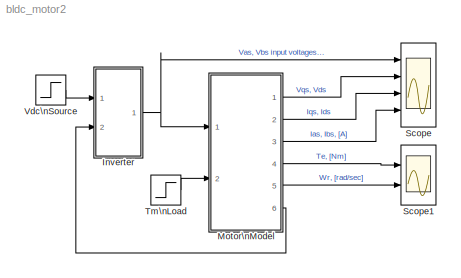
MODEL bldc_motor2
KIND model
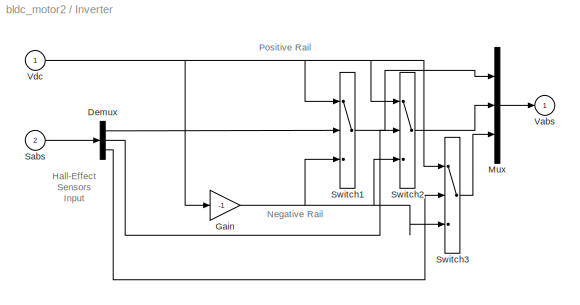
BLOCK [SubSystem] Inverter
  Ports = [2, 1]
  RequestExecContextInheritance = off
  SID = 1
BLOCK [Demux] Inverter/Demux
  Outputs = 3
  Ports = [1, 3]
  SID = 4
BLOCK [Gain] Inverter/Gain
  Gain = -1
  SID = 5
BLOCK [Mux] Inverter/Mux
  DisplayOption = bar
  Inputs = 3
  Ports = [3, 1]
  SID = 6
BLOCK [Inport] Inverter/Sabs
  IconDisplay = Port number
  Port = 2
  SID = 3
BLOCK [Switch] Inverter/Switch1
  InputSameDT = off
  SID = 7
BLOCK [Switch] Inverter/Switch2
  InputSameDT = off
  SID = 8
BLOCK [Switch] Inverter/Switch3
  InputSameDT = off
  SID = 69
BLOCK [Outport] Inverter/Vabs
  IconDisplay = Port number
  InitialOutput = 0
  SID = 9
BLOCK [Inport] Inverter/Vdc
  IconDisplay = Port number
  SID = 2
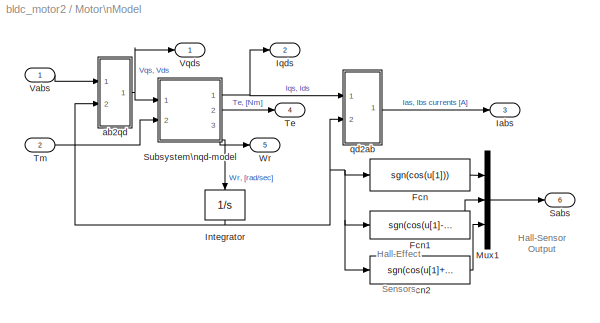
BLOCK [SubSystem] Motor\nModel
  Ports = [2, 6]
  RequestExecContextInheritance = off
  SID = 13
BLOCK [Fcn] Motor\nModel/Fcn
  Expr = sgn(cos(u[1]))
  SID = 16
BLOCK [Fcn] Motor\nModel/Fcn1
  Expr = sgn(cos(u[1]-2*pi/3))
  SID = 17
BLOCK [Fcn] Motor\nModel/Fcn2
  Expr = sgn(cos(u[1]+2*pi/3))
  SID = 70
BLOCK [Outport] Motor\nModel/Iabs
  IconDisplay = Port number
  Port = 3
  SID = 58
BLOCK [Integrator] Motor\nModel/Integrator
  Ports = [1, 1]
  SID = 18
BLOCK [Outport] Motor\nModel/Iqds
  IconDisplay = Port number
  Port = 2
  SID = 57
BLOCK [Mux] Motor\nModel/Mux1
  DisplayOption = bar
  Inputs = 3
  Ports = [3, 1]
  SID = 19
BLOCK [Outport] Motor\nModel/Sabs
  IconDisplay = Port number
  Port = 6
  SID = 61
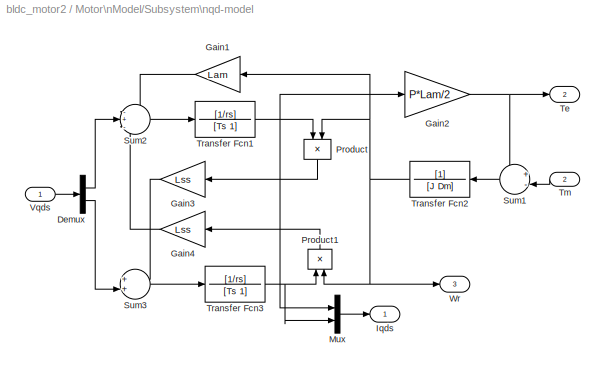
BLOCK [SubSystem] Motor\nModel/Subsystem\nqd-model
  Ports = [2, 3]
  RequestExecContextInheritance = off
  SID = 20
BLOCK [Demux] Motor\nModel/Subsystem\nqd-model/Demux
  Outputs = 2
  Ports = [1, 2]
  SID = 23
BLOCK [Gain] Motor\nModel/Subsystem\nqd-model/Gain1
  Gain = Lam
  SID = 24
BLOCK [Gain] Motor\nModel/Subsystem\nqd-model/Gain2
  Gain = P*Lam/2
  SID = 25
BLOCK [Gain] Motor\nModel/Subsystem\nqd-model/Gain3
  Gain = Lss
  SID = 26
BLOCK [Gain] Motor\nModel/Subsystem\nqd-model/Gain4
  Gain = Lss
  SID = 27
BLOCK [Outport] Motor\nModel/Subsystem\nqd-model/Iqds
  IconDisplay = Port number
  SID = 37
BLOCK [Mux] Motor\nModel/Subsystem\nqd-model/Mux
  DisplayOption = bar
  Inputs = 2
  Ports = [2, 1]
  SID = 28
BLOCK [Product] Motor\nModel/Subsystem\nqd-model/Product
  InputSameDT = off
  Ports = [2, 1]
  RndMeth = Floor
  SID = 29
BLOCK [Product] Motor\nModel/Subsystem\nqd-model/Product1
  InputSameDT = off
  Ports = [2, 1]
  RndMeth = Floor
  SID = 30
BLOCK [Sum] Motor\nModel/Subsystem\nqd-model/Sum1
  IconShape = round
  InputSameDT = off
  Inputs = +-|
  OutDataTypeStr = Inherit: Inherit via internal rule
  Ports = [2, 1]
  SID = 31
BLOCK [Sum] Motor\nModel/Subsystem\nqd-model/Sum2
  IconShape = round
  InputSameDT = off
  Inputs = -+-
  OutDataTypeStr = Inherit: Inherit via internal rule
  Ports = [3, 1]
  SID = 32
BLOCK [Sum] Motor\nModel/Subsystem\nqd-model/Sum3
  IconShape = round
  InputSameDT = off
  Inputs = ++|
  OutDataTypeStr = Inherit: Inherit via internal rule
  Ports = [2, 1]
  SID = 33
BLOCK [Outport] Motor\nModel/Subsystem\nqd-model/Te
  IconDisplay = Port number
  Port = 2
  SID = 38
BLOCK [Inport] Motor\nModel/Subsystem\nqd-model/Tm
  IconDisplay = Port number
  Port = 2
  SID = 22
BLOCK [TransferFcn] Motor\nModel/Subsystem\nqd-model/Transfer Fcn1
  Denominator = [Ts 1]
  Numerator = [1/rs]
  SID = 34
BLOCK [TransferFcn] Motor\nModel/Subsystem\nqd-model/Transfer Fcn2
  Denominator = [J Dm]
  SID = 35
BLOCK [TransferFcn] Motor\nModel/Subsystem\nqd-model/Transfer Fcn3
  Denominator = [Ts 1]
  Numerator = [1/rs]
  SID = 36
BLOCK [Inport] Motor\nModel/Subsystem\nqd-model/Vqds
  IconDisplay = Port number
  SID = 21
BLOCK [Outport] Motor\nModel/Subsystem\nqd-model/Wr
  IconDisplay = Port number
  Port = 3
  SID = 39
BLOCK [Outport] Motor\nModel/Te
  IconDisplay = Port number
  Port = 4
  SID = 59
BLOCK [Inport] Motor\nModel/Tm
  IconDisplay = Port number
  Port = 2
  SID = 15
BLOCK [Inport] Motor\nModel/Vabs
  IconDisplay = Port number
  SID = 14
BLOCK [Outport] Motor\nModel/Vqds
  IconDisplay = Port number
  SID = 56
BLOCK [Outport] Motor\nModel/Wr
  IconDisplay = Port number
  Port = 5
  SID = 60
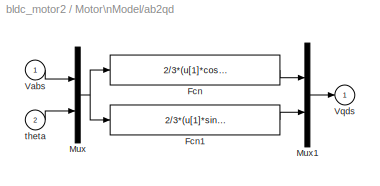
BLOCK [SubSystem] Motor\nModel/ab2qd
  Ports = [2, 1]
  RequestExecContextInheritance = off
  SID = 40
BLOCK [Fcn] Motor\nModel/ab2qd/Fcn
  Expr = 2/3*(u[1]*cos(u[4])+u[2]*cos(u[4]-2*pi/3)+u[3]*cos(u[4]+2*pi/3))
  SID = 43
BLOCK [Fcn] Motor\nModel/ab2qd/Fcn1
  Expr = 2/3*(u[1]*sin(u[4])+u[2]*sin(u[4]-2*pi/3)+u[3]*sin(u[4]+2*pi/3))
  SID = 44
BLOCK [Mux] Motor\nModel/ab2qd/Mux
  DisplayOption = bar
  Inputs = [3,1]
  Ports = [2, 1]
  SID = 45
BLOCK [Mux] Motor\nModel/ab2qd/Mux1
  DisplayOption = bar
  Inputs = 2
  Ports = [2, 1]
  SID = 46
BLOCK [Inport] Motor\nModel/ab2qd/Vabs
  IconDisplay = Port number
  SID = 41
BLOCK [Outport] Motor\nModel/ab2qd/Vqds
  IconDisplay = Port number
  InitialOutput = 0
  SID = 47
BLOCK [Inport] Motor\nModel/ab2qd/theta
  IconDisplay = Port number
  Port = 2
  SID = 42
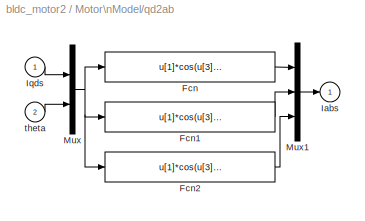
BLOCK [SubSystem] Motor\nModel/qd2ab
  Ports = [2, 1]
  RequestExecContextInheritance = off
  SID = 48
BLOCK [Fcn] Motor\nModel/qd2ab/Fcn
  Expr = u[1]*cos(u[3])+u[2]*sin(u[3])
  SID = 51
BLOCK [Fcn] Motor\nModel/qd2ab/Fcn1
  Expr = u[1]*cos(u[3]-2*pi/3)+u[2]*sin(u[3]-2*pi/3)
  SID = 52
BLOCK [Fcn] Motor\nModel/qd2ab/Fcn2
  Expr = u[1]*cos(u[3]+2*pi/3)+u[2]*sin(u[3]+2*pi/3)
  SID = 68
BLOCK [Outport] Motor\nModel/qd2ab/Iabs
  IconDisplay = Port number
  InitialOutput = 0
  SID = 55
BLOCK [Inport] Motor\nModel/qd2ab/Iqds
  IconDisplay = Port number
  SID = 49
BLOCK [Mux] Motor\nModel/qd2ab/Mux
  DisplayOption = bar
  Inputs = [2,1]
  Ports = [2, 1]
  SID = 53
BLOCK [Mux] Motor\nModel/qd2ab/Mux1
  DisplayOption = bar
  Inputs = 3
  Ports = [3, 1]
  SID = 54
BLOCK [Inport] Motor\nModel/qd2ab/theta
  IconDisplay = Port number
  Port = 2
  SID = 50
BLOCK [Scope] Scope
  DataFormat = StructureWithTime
  Floating = off
  LimitDataPoints = off
  NumInputPorts = 4
  Ports = [4]
  SID = 64
  SampleTime = 0
  ShowLegends = off
  TimeRange = 1
  YMax = 10~10~2~2
  YMin = -10~-10~-1~-1
BLOCK [Scope] Scope1
  DataFormat = StructureWithTime
  Floating = off
  LimitDataPoints = off
  NumInputPorts = 2
  Ports = [2]
  SID = 65
  SampleTime = 0
  SaveName = ScopeData1
  ShowLegends = off
  TimeRange = 1
  YMax = 0.025~400
  YMin = 0~0
BLOCK [Step] Tm\nLoad
  After = Tm
  SID = 66
  SampleTime = 0
  Time = 0.5
BLOCK [Step] Vdc\nSource
  After = Vdc
  SID = 67
  SampleTime = 0
  Time = 0.05
ANNOTATION Inverter: Hall-Effect\nSensors\nInput
ANNOTATION Inverter: Negative Rail
ANNOTATION Inverter: Positive Rail
ANNOTATION Motor\nModel: Hall-Effect\nSensors
ANNOTATION Motor\nModel: Hall-Sensor\nOutput
LINE Inverter/Demux:1 -> Inverter/Switch1:2
LINE Inverter/Demux:2 -> Inverter/Switch2:2
LINE Inverter/Demux:3 -> Inverter/Switch3:2
NET Inverter/Gain:1 -> Inverter/Switch1:3, Inverter/Switch2:3, Inverter/Switch3:3
LINE Inverter/Mux:1 -> Inverter/Vabs:1
LINE Inverter/Sabs:1 -> Inverter/Demux:1
LINE Inverter/Switch1:1 -> Inverter/Mux:1
LINE Inverter/Switch2:1 -> Inverter/Mux:2
LINE Inverter/Switch3:1 -> Inverter/Mux:3
NET Inverter/Vdc:1 -> Inverter/Gain:1, Inverter/Switch1:1, Inverter/Switch2:1, Inverter/Switch3:1
NET Inverter:1 -> Motor\nModel:1, Scope:1
LINE Motor\nModel/Fcn1:1 -> Motor\nModel/Mux1:2
LINE Motor\nModel/Fcn2:1 -> Motor\nModel/Mux1:3
LINE Motor\nModel/Fcn:1 -> Motor\nModel/Mux1:1
NET Motor\nModel/Integrator:1 -> Motor\nModel/Fcn1:1, Motor\nModel/Fcn2:1, Motor\nModel/Fcn:1, Motor\nModel/ab2qd:2, Motor\nModel/qd2ab:2
LINE Motor\nModel/Mux1:1 -> Motor\nModel/Sabs:1
LINE Motor\nModel/Subsystem\nqd-model/Demux:1 -> Motor\nModel/Subsystem\nqd-model/Sum2:2
LINE Motor\nModel/Subsystem\nqd-model/Demux:2 -> Motor\nModel/Subsystem\nqd-model/Sum3:2
LINE Motor\nModel/Subsystem\nqd-model/Gain1:1 -> Motor\nModel/Subsystem\nqd-model/Sum2:1
NET Motor\nModel/Subsystem\nqd-model/Gain2:1 -> Motor\nModel/Subsystem\nqd-model/Sum1:1, Motor\nModel/Subsystem\nqd-model/Te:1
LINE Motor\nModel/Subsystem\nqd-model/Gain3:1 -> Motor\nModel/Subsystem\nqd-model/Sum3:1
LINE Motor\nModel/Subsystem\nqd-model/Gain4:1 -> Motor\nModel/Subsystem\nqd-model/Sum2:3
LINE Motor\nModel/Subsystem\nqd-model/Mux:1 -> Motor\nModel/Subsystem\nqd-model/Iqds:1
LINE Motor\nModel/Subsystem\nqd-model/Product1:1 -> Motor\nModel/Subsystem\nqd-model/Gain4:1
LINE Motor\nModel/Subsystem\nqd-model/Product:1 -> Motor\nModel/Subsystem\nqd-model/Gain3:1
LINE Motor\nModel/Subsystem\nqd-model/Sum1:1 -> Motor\nModel/Subsystem\nqd-model/Transfer Fcn2:1
LINE Motor\nModel/Subsystem\nqd-model/Sum2:1 -> Motor\nModel/Subsystem\nqd-model/Transfer Fcn1:1
LINE Motor\nModel/Subsystem\nqd-model/Sum3:1 -> Motor\nModel/Subsystem\nqd-model/Transfer Fcn3:1
LINE Motor\nModel/Subsystem\nqd-model/Tm:1 -> Motor\nModel/Subsystem\nqd-model/Sum1:2
NET Motor\nModel/Subsystem\nqd-model/Transfer Fcn1:1 -> Motor\nModel/Subsystem\nqd-model/Gain2:1, Motor\nModel/Subsystem\nqd-model/Mux:1, Motor\nModel/Subsystem\nqd-model/Product:1
NET Motor\nModel/Subsystem\nqd-model/Transfer Fcn2:1 -> Motor\nModel/Subsystem\nqd-model/Gain1:1, Motor\nModel/Subsystem\nqd-model/Product1:2, Motor\nModel/Subsystem\nqd-model/Product:2, Motor\nModel/Subsystem\nqd-model/Wr:1
NET Motor\nModel/Subsystem\nqd-model/Transfer Fcn3:1 -> Motor\nModel/Subsystem\nqd-model/Mux:2, Motor\nModel/Subsystem\nqd-model/Product1:1
LINE Motor\nModel/Subsystem\nqd-model/Vqds:1 -> Motor\nModel/Subsystem\nqd-model/Demux:1
NET Motor\nModel/Subsystem\nqd-model:1 -> Motor\nModel/Iqds:1, Motor\nModel/qd2ab:1
LINE Motor\nModel/Subsystem\nqd-model:2 -> Motor\nModel/Te:1
NET Motor\nModel/Subsystem\nqd-model:3 -> Motor\nModel/Integrator:1, Motor\nModel/Wr:1
LINE Motor\nModel/Tm:1 -> Motor\nModel/Subsystem\nqd-model:2
LINE Motor\nModel/Vabs:1 -> Motor\nModel/ab2qd:1
LINE Motor\nModel/ab2qd/Fcn1:1 -> Motor\nModel/ab2qd/Mux1:2
LINE Motor\nModel/ab2qd/Fcn:1 -> Motor\nModel/ab2qd/Mux1:1
LINE Motor\nModel/ab2qd/Mux1:1 -> Motor\nModel/ab2qd/Vqds:1
NET Motor\nModel/ab2qd/Mux:1 -> Motor\nModel/ab2qd/Fcn1:1, Motor\nModel/ab2qd/Fcn:1
LINE Motor\nModel/ab2qd/Vabs:1 -> Motor\nModel/ab2qd/Mux:1
LINE Motor\nModel/ab2qd/theta:1 -> Motor\nModel/ab2qd/Mux:2
NET Motor\nModel/ab2qd:1 -> Motor\nModel/Subsystem\nqd-model:1, Motor\nModel/Vqds:1
LINE Motor\nModel/qd2ab/Fcn1:1 -> Motor\nModel/qd2ab/Mux1:2
LINE Motor\nModel/qd2ab/Fcn2:1 -> Motor\nModel/qd2ab/Mux1:3
LINE Motor\nModel/qd2ab/Fcn:1 -> Motor\nModel/qd2ab/Mux1:1
LINE Motor\nModel/qd2ab/Iqds:1 -> Motor\nModel/qd2ab/Mux:1
LINE Motor\nModel/qd2ab/Mux1:1 -> Motor\nModel/qd2ab/Iabs:1
NET Motor\nModel/qd2ab/Mux:1 -> Motor\nModel/qd2ab/Fcn1:1, Motor\nModel/qd2ab/Fcn2:1, Motor\nModel/qd2ab/Fcn:1
LINE Motor\nModel/qd2ab/theta:1 -> Motor\nModel/qd2ab/Mux:2
LINE Motor\nModel/qd2ab:1 -> Motor\nModel/Iabs:1
LINE Motor\nModel:1 -> Scope:2
LINE Motor\nModel:2 -> Scope:3
LINE Motor\nModel:3 -> Scope:4
LINE Motor\nModel:4 -> Scope1:1
LINE Motor\nModel:5 -> Scope1:2
LINE Motor\nModel:6 -> Inverter:2
LINE Tm\nLoad:1 -> Motor\nModel:2
LINE Vdc\nSource:1 -> Inverter:1
note: NET lines group one-source signal fan-out (src -> all destinations, sorted); 1:1 wires keep LINE
